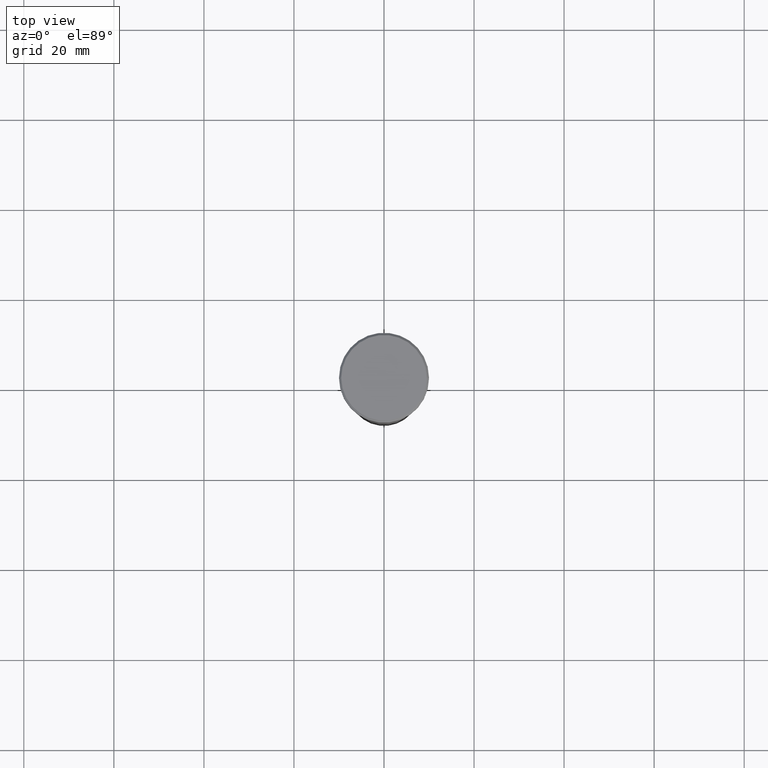
[diagram: clean part render]
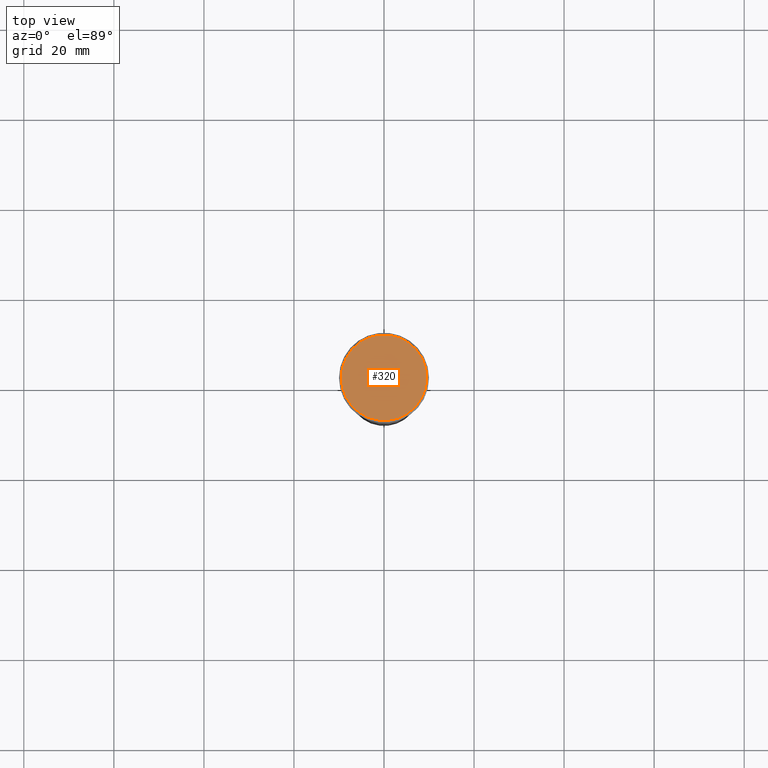
[diagram: same view with one face highlighted and labeled with its STEP entity id]
A machine part, top view. The second image highlights one B-rep face of the part: STEP entity #320.
In plain terms, the highlighted planar face has unit normal (0, -0, 1).
Its self-contained STEP definition (entity closure, byte-faithful):
#37 = EDGE_LOOP ( 'NONE', ( #580, #565 ) ) ;
#48 = DIRECTION ( 'NONE',  ( -0.000000000000000000, -0.000000000000000000, 1.000000000000000000 ) ) ;
#58 = CARTESIAN_POINT ( 'NONE',  ( -9.500000000000005329, 0.000000000000000000, 0.000000000000000000 ) ) ;
#101 = CARTESIAN_POINT ( 'NONE',  ( 0.000000000000000000, 0.000000000000000000, 0.000000000000000000 ) ) ;
#131 = FACE_OUTER_BOUND ( 'NONE', #37, .T. ) ;
#163 = AXIS2_PLACEMENT_3D ( 'NONE', #101, #48, #291 ) ;
#185 = CIRCLE ( 'NONE', #163, 9.500000000000005329 ) ;
#250 = VERTEX_POINT ( 'NONE', #58 ) ;
#257 = AXIS2_PLACEMENT_3D ( 'NONE', #559, #296, #524 ) ;
#260 = DIRECTION ( 'NONE',  ( 1.000000000000000000, 0.000000000000000000, 0.000000000000000000 ) ) ;
#275 = EDGE_CURVE ( 'NONE', #382, #250, #339, .T. ) ;
#291 = DIRECTION ( 'NONE',  ( 1.000000000000000000, 0.000000000000000000, 0.000000000000000000 ) ) ;
#296 = DIRECTION ( 'NONE',  ( 0.000000000000000000, -0.000000000000000000, 1.000000000000000000 ) ) ;
#320 = ADVANCED_FACE ( 'NONE', ( #131 ), #466, .T. ) ;
#323 = CARTESIAN_POINT ( 'NONE',  ( 9.500000000000005329, 1.194030629168669864E-15, 0.000000000000000000 ) ) ;
#339 = CIRCLE ( 'NONE', #463, 9.500000000000005329 ) ;
#382 = VERTEX_POINT ( 'NONE', #323 ) ;
#451 = EDGE_CURVE ( 'NONE', #250, #382, #185, .T. ) ;
#463 = AXIS2_PLACEMENT_3D ( 'NONE', #486, #572, #260 ) ;
#466 = PLANE ( 'NONE',  #257 ) ;
#486 = CARTESIAN_POINT ( 'NONE',  ( 0.000000000000000000, 0.000000000000000000, 0.000000000000000000 ) ) ;
#524 = DIRECTION ( 'NONE',  ( 1.000000000000000000, 0.000000000000000000, 0.000000000000000000 ) ) ;
#559 = CARTESIAN_POINT ( 'NONE',  ( 0.000000000000000000, 0.000000000000000000, 0.000000000000000000 ) ) ;
#565 = ORIENTED_EDGE ( 'NONE', *, *, #275, .T. ) ;
#572 = DIRECTION ( 'NONE',  ( -0.000000000000000000, -0.000000000000000000, 1.000000000000000000 ) ) ;
#580 = ORIENTED_EDGE ( 'NONE', *, *, #451, .T. ) ;